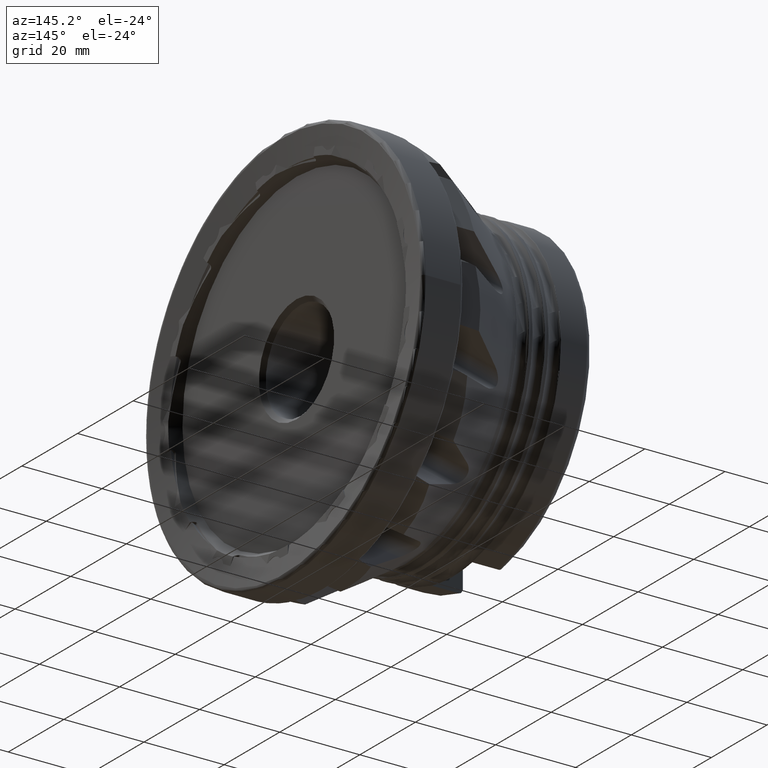
[diagram: clean part render]
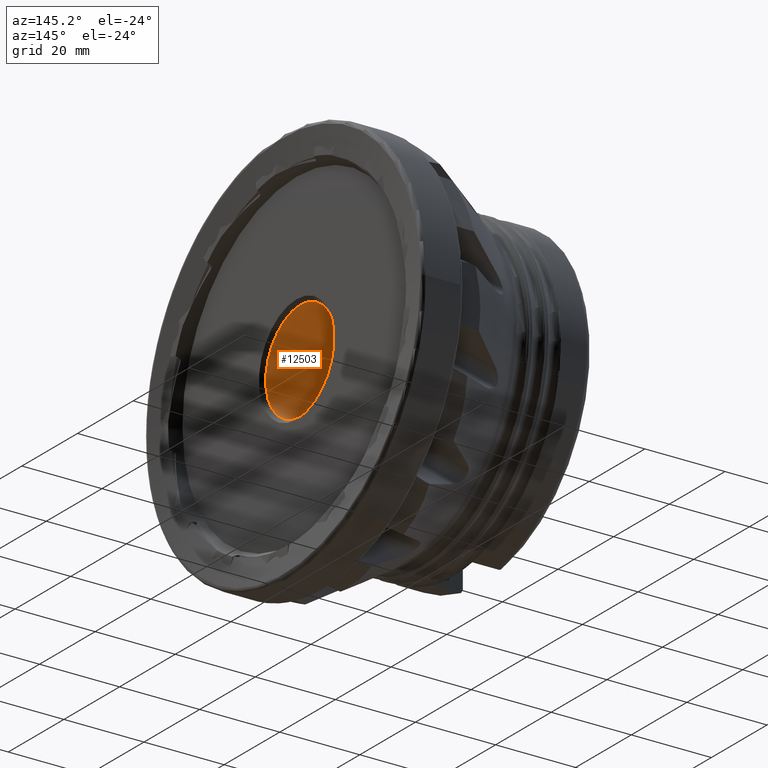
[diagram: same view with one face highlighted and labeled with its STEP entity id]
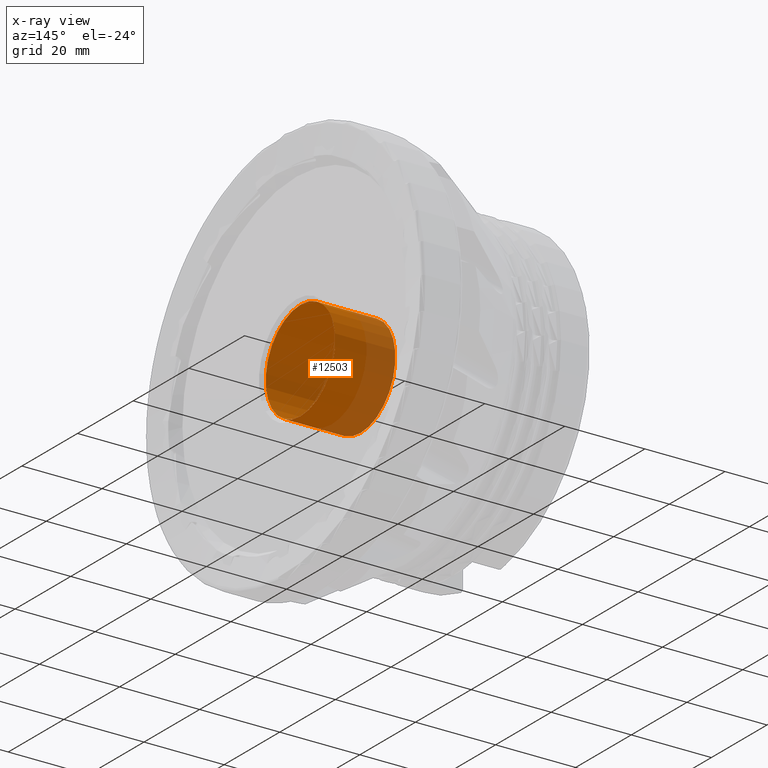
[diagram: x-ray of the same camera — body ghosted, the highlighted face saturated]
A machine part, auxiliary view. The second image highlights one B-rep face of the part: STEP entity #12503.
The next image is the same camera in x-ray: the body ghosted, the highlighted face saturated — about 28% of this face is hidden behind the body in this view.
In plain terms, the highlighted cylindrical surface (bore or boss wall) has radius 12.5 mm, axis along (1, -0, -0).
Its self-contained STEP definition (entity closure, byte-faithful):
#24 = CIRCLE ( 'NONE', #8075, 12.49999999999999800 ) ;
#513 = CARTESIAN_POINT ( 'NONE',  ( -18.50000000000001100, 0.0000000000000000000, 0.0000000000000000000 ) ) ;
#1540 = DIRECTION ( 'NONE',  ( 0.0000000000000000000, 0.0000000000000000000, -1.000000000000000000 ) ) ;
#1598 = CARTESIAN_POINT ( 'NONE',  ( -18.50000000000001100, 0.0000000000000000000, -12.49999999999999800 ) ) ;
#1963 = AXIS2_PLACEMENT_3D ( 'NONE', #5507, #4746, #11695 ) ;
#2371 = DIRECTION ( 'NONE',  ( 0.0000000000000000000, 0.0000000000000000000, -1.000000000000000000 ) ) ;
#3298 = EDGE_LOOP ( 'NONE', ( #8772 ) ) ;
#3375 = CARTESIAN_POINT ( 'NONE',  ( 0.0000000000000000000, 0.0000000000000000000, 0.0000000000000000000 ) ) ;
#4746 = DIRECTION ( 'NONE',  ( 1.000000000000000000, 0.0000000000000000000, 0.0000000000000000000 ) ) ;
#5507 = CARTESIAN_POINT ( 'NONE',  ( -3.500000000000012900, 0.0000000000000000000, 0.0000000000000000000 ) ) ;
#5558 = CIRCLE ( 'NONE', #1963, 12.50000000000000000 ) ;
#5767 = EDGE_LOOP ( 'NONE', ( #7595 ) ) ;
#6942 = EDGE_CURVE ( 'NONE', #8014, #8014, #24, .T. ) ;
#7489 = DIRECTION ( 'NONE',  ( 1.000000000000000000, -0.0000000000000000000, -0.0000000000000000000 ) ) ;
#7595 = ORIENTED_EDGE ( 'NONE', *, *, #12564, .T. ) ;
#7680 = CYLINDRICAL_SURFACE ( 'NONE', #12212, 12.50000000000000000 ) ;
#7847 = FACE_OUTER_BOUND ( 'NONE', #5767, .T. ) ;
#7872 = FACE_OUTER_BOUND ( 'NONE', #3298, .T. ) ;
#8014 = VERTEX_POINT ( 'NONE', #1598 ) ;
#8075 = AXIS2_PLACEMENT_3D ( 'NONE', #513, #7489, #1540 ) ;
#8772 = ORIENTED_EDGE ( 'NONE', *, *, #6942, .F. ) ;
#10679 = CARTESIAN_POINT ( 'NONE',  ( -3.500000000000012900, 0.0000000000000000000, -12.50000000000000000 ) ) ;
#11332 = DIRECTION ( 'NONE',  ( 1.000000000000000000, -0.0000000000000000000, -0.0000000000000000000 ) ) ;
#11695 = DIRECTION ( 'NONE',  ( 0.0000000000000000000, 0.0000000000000000000, -1.000000000000000000 ) ) ;
#12212 = AXIS2_PLACEMENT_3D ( 'NONE', #3375, #11332, #2371 ) ;
#12503 = ADVANCED_FACE ( 'NONE', ( #7847, #7872 ), #7680, .F. ) ;
#12564 = EDGE_CURVE ( 'NONE', #12807, #12807, #5558, .T. ) ;
#12807 = VERTEX_POINT ( 'NONE', #10679 ) ;